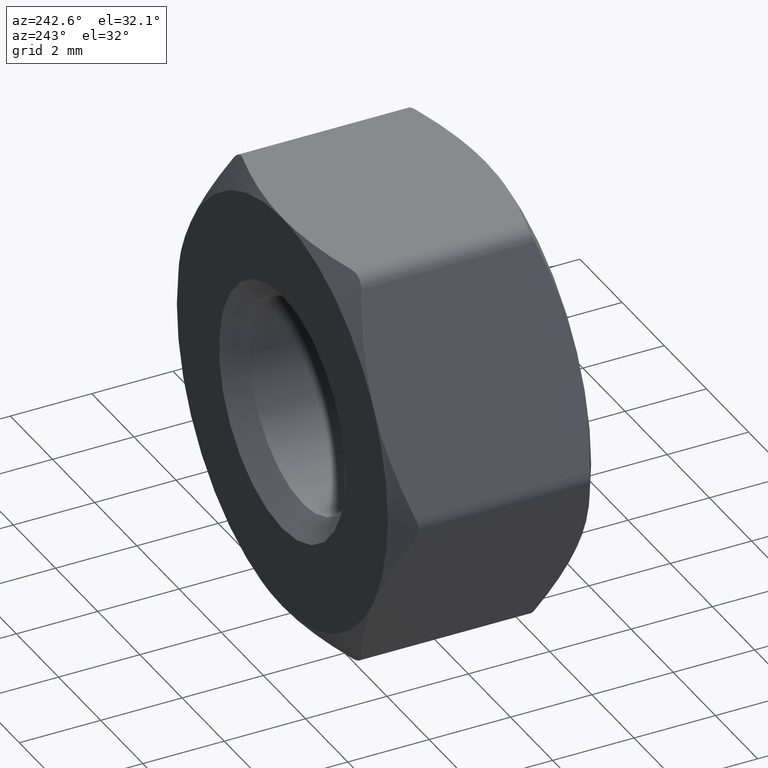
[diagram: clean part render]
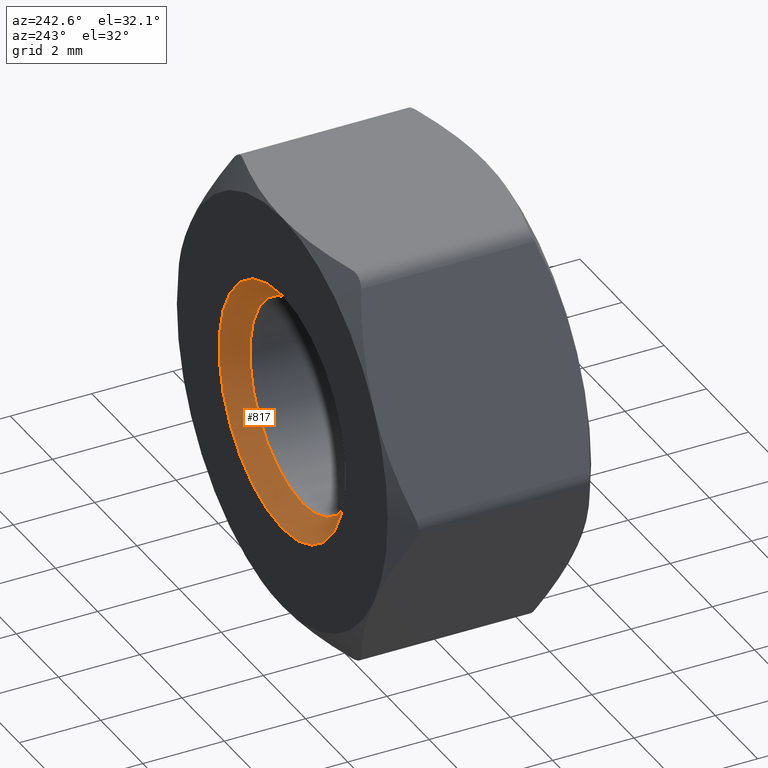
[diagram: same view with one face highlighted and labeled with its STEP entity id]
A machine part, auxiliary view. The second image highlights one B-rep face of the part: STEP entity #817.
In plain terms, the highlighted conical surface has half-angle 45 deg.
Its self-contained STEP definition (entity closure, byte-faithful):
#73 = VERTEX_POINT ( 'NONE', #1207 ) ;
#99 = EDGE_CURVE ( 'NONE', #1687, #1687, #1100, .T. ) ;
#205 = EDGE_LOOP ( 'NONE', ( #1018 ) ) ;
#234 = DIRECTION ( 'NONE',  ( -0.0000000000000000000, -1.000000000000000000, -0.0000000000000000000 ) ) ;
#375 = DIRECTION ( 'NONE',  ( 0.0000000000000000000, 0.0000000000000000000, 1.000000000000000000 ) ) ;
#406 = CARTESIAN_POINT ( 'NONE',  ( 0.0000000000000000000, 2.000000000000003100, 0.0000000000000000000 ) ) ;
#426 = EDGE_CURVE ( 'NONE', #73, #73, #1571, .T. ) ;
#433 = FACE_BOUND ( 'NONE', #205, .T. ) ;
#464 = EDGE_LOOP ( 'NONE', ( #1366 ) ) ;
#528 = DIRECTION ( 'NONE',  ( 0.0000000000000000000, 1.000000000000000000, 0.0000000000000000000 ) ) ;
#554 = FACE_OUTER_BOUND ( 'NONE', #464, .T. ) ;
#661 = CARTESIAN_POINT ( 'NONE',  ( 0.0000000000000000000, 2.000000000000003100, 0.0000000000000000000 ) ) ;
#696 = AXIS2_PLACEMENT_3D ( 'NONE', #1542, #234, #1146 ) ;
#817 = ADVANCED_FACE ( 'NONE', ( #554, #433 ), #1027, .F. ) ;
#1018 = ORIENTED_EDGE ( 'NONE', *, *, #426, .F. ) ;
#1027 = CONICAL_SURFACE ( 'NONE', #1338, 2.499999999999998700, 0.7853981633974501700 ) ;
#1100 = CIRCLE ( 'NONE', #696, 2.999999999999997300 ) ;
#1146 = DIRECTION ( 'NONE',  ( 0.0000000000000000000, 0.0000000000000000000, 1.000000000000000000 ) ) ;
#1160 = DIRECTION ( 'NONE',  ( 0.0000000000000000000, 1.000000000000000000, 0.0000000000000000000 ) ) ;
#1207 = CARTESIAN_POINT ( 'NONE',  ( 0.0000000000000000000, 2.000000000000003100, 2.499999999999998700 ) ) ;
#1338 = AXIS2_PLACEMENT_3D ( 'NONE', #406, #1160, #375 ) ;
#1366 = ORIENTED_EDGE ( 'NONE', *, *, #99, .F. ) ;
#1484 = CARTESIAN_POINT ( 'NONE',  ( 0.0000000000000000000, 2.500000000000000000, 2.999999999999997300 ) ) ;
#1542 = CARTESIAN_POINT ( 'NONE',  ( 0.0000000000000000000, 2.500000000000000000, 0.0000000000000000000 ) ) ;
#1571 = CIRCLE ( 'NONE', #1648, 2.499999999999998700 ) ;
#1589 = DIRECTION ( 'NONE',  ( 0.0000000000000000000, 0.0000000000000000000, 1.000000000000000000 ) ) ;
#1648 = AXIS2_PLACEMENT_3D ( 'NONE', #661, #528, #1589 ) ;
#1687 = VERTEX_POINT ( 'NONE', #1484 ) ;